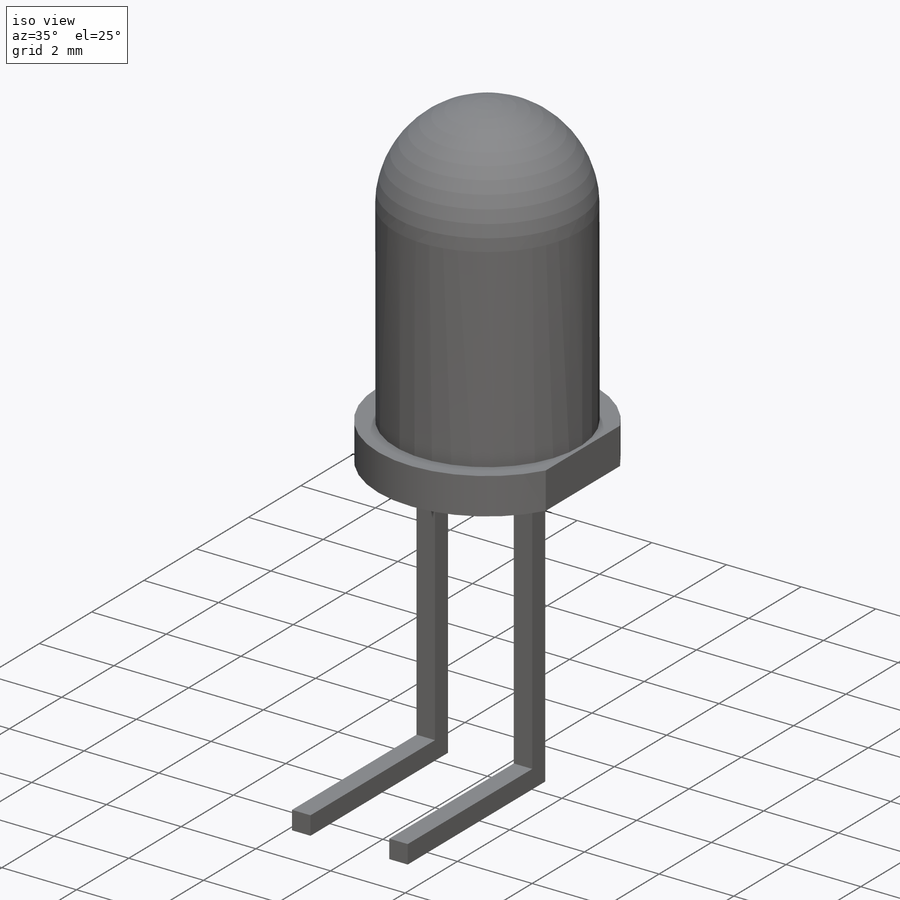
[diagram: iso view]
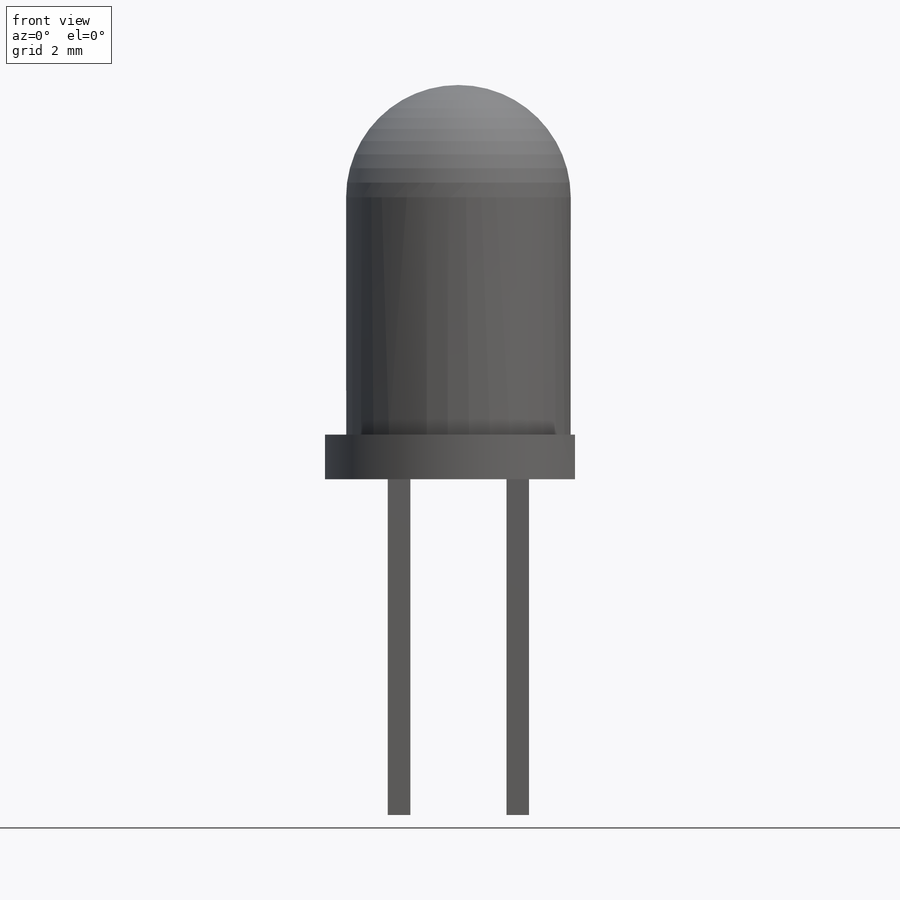
[diagram: front view]
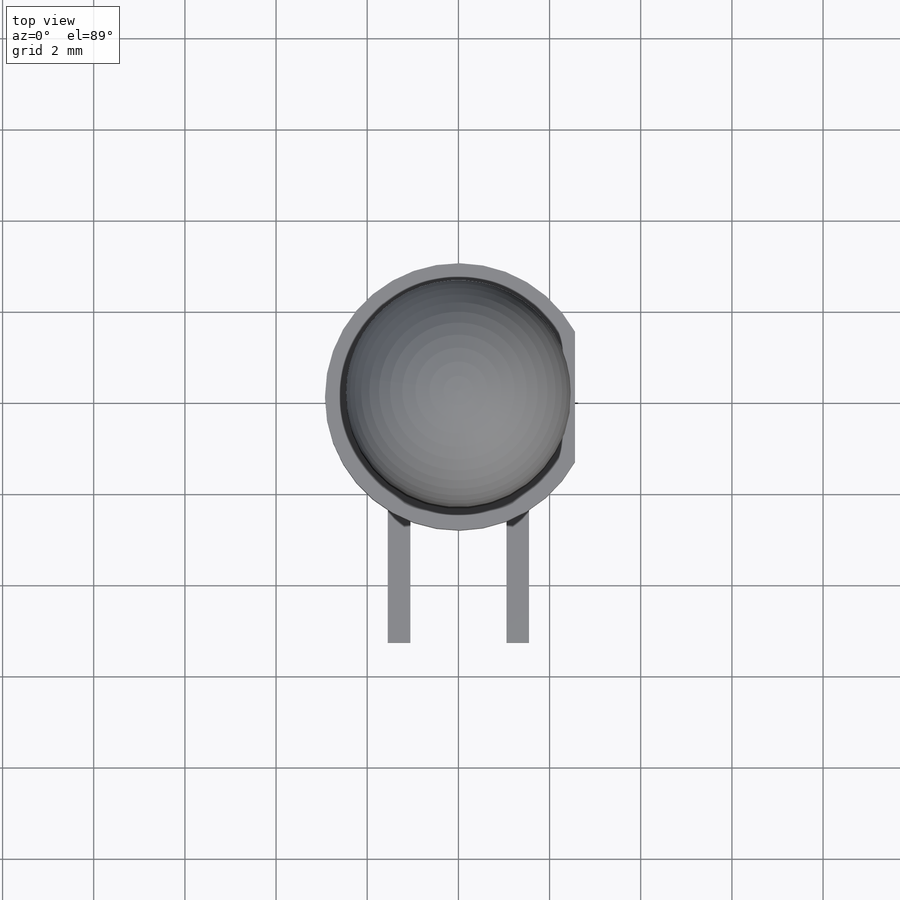
[diagram: top view]
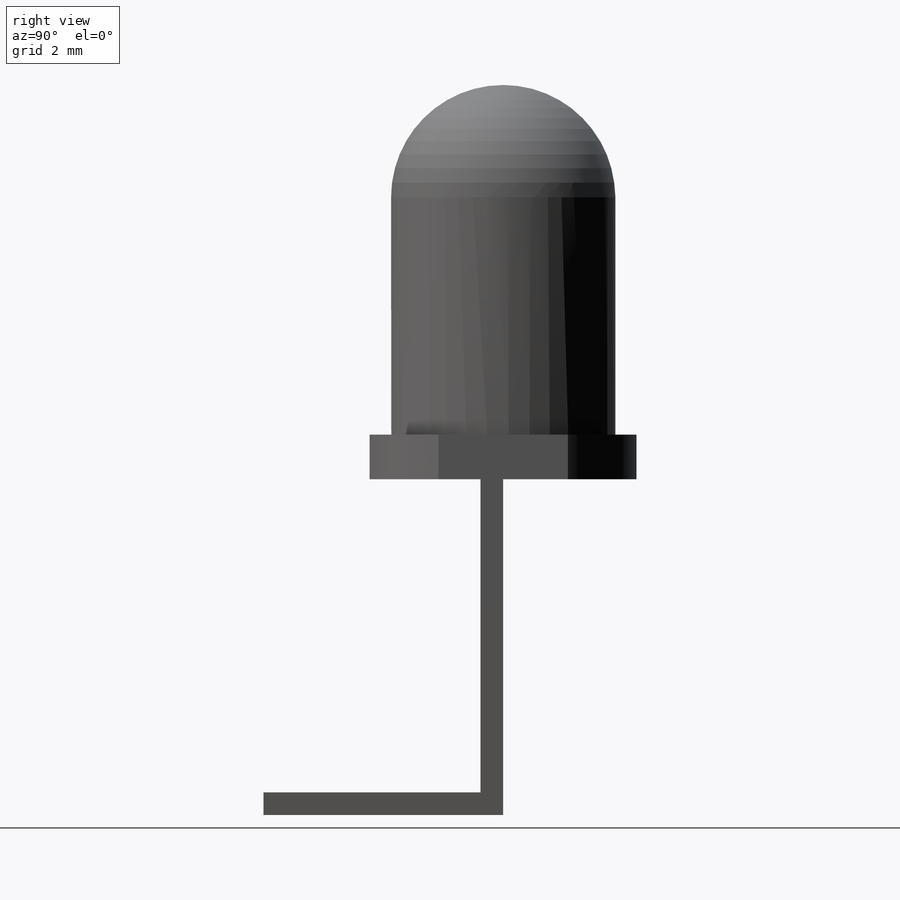
[diagram: right view]
SOLIDWORKS PART (.sldprt)
format: sldprt  version: not decoded by parser v0  size: 183,808 bytes
history: native  units: mm
features: sketch x5, extrude x4, material x1, revolve x1 (+11 scaffold rows collapsed)
feature tree (22):
  scaffold x11  (default folders/planes/origin — collapsed)
  material  "Material <not specified>"
  sketch  "Sketch3"  dims[D3=2.4638mm D1=7.6708mm D2=2.4638mm]
  revolve  "Revolve1"  Angle=360deg
  sketch  "Sketch4"  dims[D1=5.8547mm D2=~2.55905mm]
  extrude  "Boss-Extrude2"  Depth=0.9779mm
  sketch  "Sketch5"  dims[D1=0.4953mm D2=7.366mm D3=1.5494mm]
  extrude  "Boss-Extrude3"  Depth=0.4953mm
  sketch  "Sketch6"
  extrude  "Boss-Extrude4"  Depth=4.7625mm
  sketch  "Sketch7"
  extrude  "Boss-Extrude5"  Depth=4.7625mm
decode coverage: 8 of 10 modeling features carry decoded parameters
note: ~ marks probable driven/reference dimensions
note: suppression state not decoded; provenance and decode notes live in map.json
